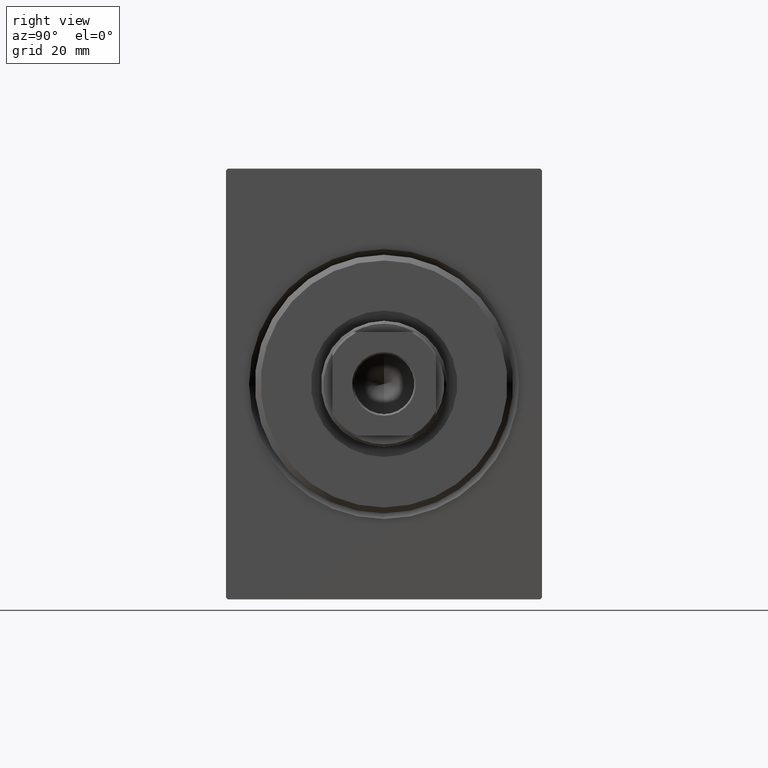
[diagram: clean part render]
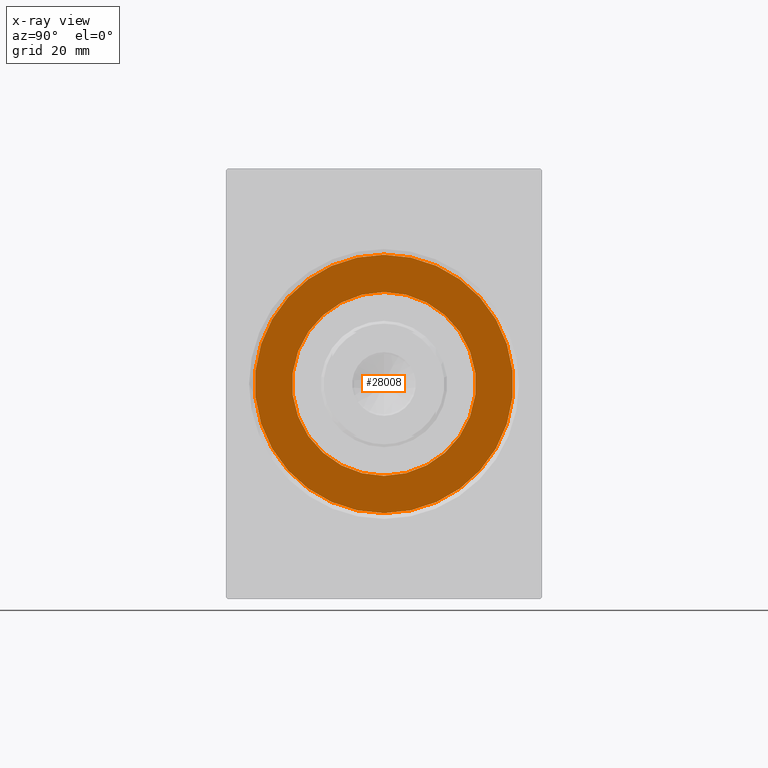
[diagram: x-ray — body ghosted, one internal face saturated and labeled with its STEP entity id]
A machine part, right view, then the same camera in x-ray: the body is ghosted and one INTERNAL B-rep face — a face not visible from any outside direction — is saturated and labeled: STEP entity #28008.
In plain terms, the highlighted planar face has unit normal (1, 0, -0).
Its self-contained STEP definition (entity closure, byte-faithful):
#349 = CARTESIAN_POINT ( 'NONE',  ( 4.999999999999997335, 0.000000000000000000, 16.00000000000000000 ) ) ;
#1417 = DIRECTION ( 'NONE',  ( 0.000000000000000000, 0.000000000000000000, 1.000000000000000000 ) ) ;
#1983 = ORIENTED_EDGE ( 'NONE', *, *, #41700, .T. ) ;
#3640 = DIRECTION ( 'NONE',  ( -1.000000000000000000, 0.000000000000000000, 0.000000000000000000 ) ) ;
#4185 = CARTESIAN_POINT ( 'NONE',  ( 5.000000000000000000, 0.000000000000000000, 0.000000000000000000 ) ) ;
#4607 = DIRECTION ( 'NONE',  ( 0.000000000000000000, 0.000000000000000000, 1.000000000000000000 ) ) ;
#6533 = VERTEX_POINT ( 'NONE', #22918 ) ;
#9206 = AXIS2_PLACEMENT_3D ( 'NONE', #13532, #3640, #32454 ) ;
#10265 = FACE_BOUND ( 'NONE', #19841, .T. ) ;
#11331 = CIRCLE ( 'NONE', #31274, 16.00000000000000000 ) ;
#11452 = CARTESIAN_POINT ( 'NONE',  ( 4.999999999999997335, 0.000000000000000000, 0.000000000000000000 ) ) ;
#13532 = CARTESIAN_POINT ( 'NONE',  ( 4.999999999999997335, 0.000000000000000000, 0.000000000000000000 ) ) ;
#14297 = EDGE_CURVE ( 'NONE', #6533, #22248, #30558, .T. ) ;
#14816 = CIRCLE ( 'NONE', #25915, 22.50000000000000355 ) ;
#15153 = ORIENTED_EDGE ( 'NONE', *, *, #19463, .F. ) ;
#17300 = DIRECTION ( 'NONE',  ( 0.000000000000000000, 0.000000000000000000, 1.000000000000000000 ) ) ;
#17548 = CARTESIAN_POINT ( 'NONE',  ( 5.000000000000000000, 0.000000000000000000, 0.000000000000000000 ) ) ;
#17662 = VERTEX_POINT ( 'NONE', #31219 ) ;
#19463 = EDGE_CURVE ( 'NONE', #17662, #23605, #11331, .T. ) ;
#19841 = EDGE_LOOP ( 'NONE', ( #23709, #15153 ) ) ;
#22248 = VERTEX_POINT ( 'NONE', #25150 ) ;
#22918 = CARTESIAN_POINT ( 'NONE',  ( 5.000000000000000000, 2.755455298081545172E-15, -22.50000000000000355 ) ) ;
#23605 = VERTEX_POINT ( 'NONE', #349 ) ;
#23709 = ORIENTED_EDGE ( 'NONE', *, *, #33084, .F. ) ;
#23752 = CARTESIAN_POINT ( 'NONE',  ( 5.000000000000000000, 0.000000000000000000, 0.000000000000000000 ) ) ;
#24574 = DIRECTION ( 'NONE',  ( -1.000000000000000000, 0.000000000000000000, 0.000000000000000000 ) ) ;
#25150 = CARTESIAN_POINT ( 'NONE',  ( 5.000000000000000000, 0.000000000000000000, 22.50000000000000355 ) ) ;
#25748 = AXIS2_PLACEMENT_3D ( 'NONE', #4185, #36244, #17300 ) ;
#25915 = AXIS2_PLACEMENT_3D ( 'NONE', #23752, #30836, #4607 ) ;
#27741 = CIRCLE ( 'NONE', #9206, 16.00000000000000000 ) ;
#28008 = ADVANCED_FACE ( 'NONE', ( #10265, #30051 ), #40134, .T. ) ;
#30051 = FACE_OUTER_BOUND ( 'NONE', #37266, .T. ) ;
#30558 = CIRCLE ( 'NONE', #25748, 22.50000000000000355 ) ;
#30836 = DIRECTION ( 'NONE',  ( -1.000000000000000000, 0.000000000000000000, 0.000000000000000000 ) ) ;
#30882 = DIRECTION ( 'NONE',  ( -1.000000000000000000, 0.000000000000000000, 0.000000000000000000 ) ) ;
#31219 = CARTESIAN_POINT ( 'NONE',  ( 4.999999999999997335, 1.959434878635765131E-15, -16.00000000000000000 ) ) ;
#31237 = DIRECTION ( 'NONE',  ( 0.000000000000000000, 0.000000000000000000, 1.000000000000000000 ) ) ;
#31274 = AXIS2_PLACEMENT_3D ( 'NONE', #11452, #24574, #31237 ) ;
#32454 = DIRECTION ( 'NONE',  ( 0.000000000000000000, 0.000000000000000000, 1.000000000000000000 ) ) ;
#33084 = EDGE_CURVE ( 'NONE', #23605, #17662, #27741, .T. ) ;
#35873 = ORIENTED_EDGE ( 'NONE', *, *, #14297, .T. ) ;
#36244 = DIRECTION ( 'NONE',  ( -1.000000000000000000, 0.000000000000000000, 0.000000000000000000 ) ) ;
#37266 = EDGE_LOOP ( 'NONE', ( #1983, #35873 ) ) ;
#37925 = AXIS2_PLACEMENT_3D ( 'NONE', #17548, #30882, #1417 ) ;
#40134 = PLANE ( 'NONE',  #37925 ) ;
#41700 = EDGE_CURVE ( 'NONE', #22248, #6533, #14816, .T. ) ;